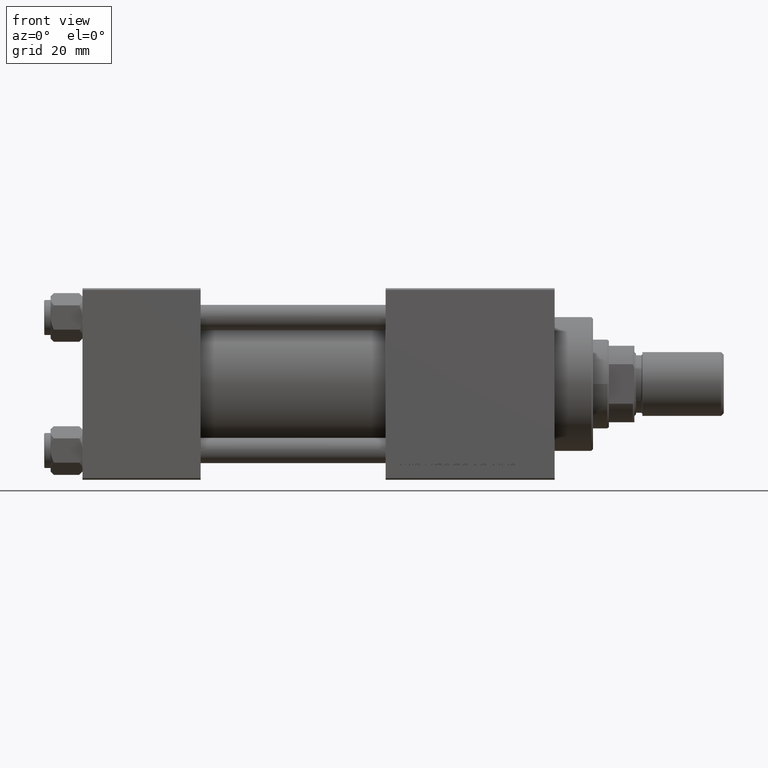
[diagram: clean part render]
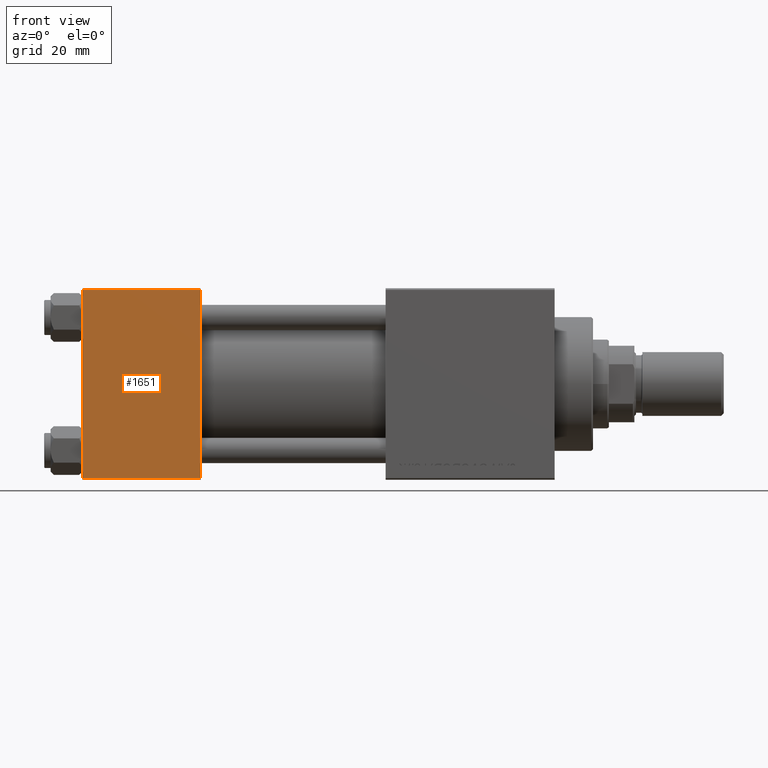
[diagram: same view with one face highlighted and labeled with its STEP entity id]
A machine part, front view. The second image highlights one B-rep face of the part: STEP entity #1651.
In plain terms, the highlighted planar face has unit normal (0, 1, 0).
Its self-contained STEP definition (entity closure, byte-faithful):
#905 = PLANE ( 'NONE',  #44231 ) ;
#1396 = ORIENTED_EDGE ( 'NONE', *, *, #7309, .T. ) ;
#1651 = ADVANCED_FACE ( 'NONE', ( #31537 ), #905, .F. ) ;
#3552 = EDGE_CURVE ( 'NONE', #26839, #11137, #45349, .T. ) ;
#3611 = CARTESIAN_POINT ( 'NONE',  ( 37.00000000000000000, -30.00000000000000000, 29.49999999999999289 ) ) ;
#4163 = LINE ( 'NONE', #23472, #27058 ) ;
#7309 = EDGE_CURVE ( 'NONE', #27346, #45643, #4163, .T. ) ;
#10072 = DIRECTION ( 'NONE',  ( -1.000000000000000000, 0.000000000000000000, 0.000000000000000000 ) ) ;
#10333 = CARTESIAN_POINT ( 'NONE',  ( 37.00000000000000000, -30.00000000000000000, 29.49999999999999289 ) ) ;
#11137 = VERTEX_POINT ( 'NONE', #32799 ) ;
#11878 = DIRECTION ( 'NONE',  ( 1.000000000000000000, 0.000000000000000000, 0.000000000000000000 ) ) ;
#11962 = DIRECTION ( 'NONE',  ( -0.000000000000000000, 1.000000000000000000, 0.000000000000000000 ) ) ;
#12549 = CARTESIAN_POINT ( 'NONE',  ( 37.00000000000000000, -30.00000000000000000, -29.50000000000001776 ) ) ;
#16093 = CARTESIAN_POINT ( 'NONE',  ( 37.00000000000000000, -30.00000000000000000, 29.99999999999999289 ) ) ;
#20454 = VECTOR ( 'NONE', #10072, 1000.000000000000000 ) ;
#23472 = CARTESIAN_POINT ( 'NONE',  ( 37.00000000000000000, -30.00000000000000000, -29.50000000000001776 ) ) ;
#24069 = DIRECTION ( 'NONE',  ( 0.000000000000000000, -0.000000000000000000, 1.000000000000000000 ) ) ;
#25788 = CARTESIAN_POINT ( 'NONE',  ( 0.000000000000000000, -30.00000000000000000, -29.50000000000001776 ) ) ;
#26839 = VERTEX_POINT ( 'NONE', #3611 ) ;
#27058 = VECTOR ( 'NONE', #11878, 1000.000000000000000 ) ;
#27346 = VERTEX_POINT ( 'NONE', #25788 ) ;
#30320 = ORIENTED_EDGE ( 'NONE', *, *, #45599, .F. ) ;
#30729 = EDGE_CURVE ( 'NONE', #11137, #27346, #32415, .T. ) ;
#31537 = FACE_OUTER_BOUND ( 'NONE', #45804, .T. ) ;
#31927 = ORIENTED_EDGE ( 'NONE', *, *, #3552, .T. ) ;
#32090 = VECTOR ( 'NONE', #48118, 1000.000000000000000 ) ;
#32415 = LINE ( 'NONE', #40625, #32090 ) ;
#32799 = CARTESIAN_POINT ( 'NONE',  ( 0.000000000000000000, -30.00000000000000000, 29.49999999999999289 ) ) ;
#34935 = VECTOR ( 'NONE', #43962, 1000.000000000000000 ) ;
#39405 = ORIENTED_EDGE ( 'NONE', *, *, #30729, .T. ) ;
#40625 = CARTESIAN_POINT ( 'NONE',  ( 0.000000000000000000, -30.00000000000000000, 29.99999999999999289 ) ) ;
#43433 = CARTESIAN_POINT ( 'NONE',  ( 37.00000000000000000, -30.00000000000000000, 29.99999999999999289 ) ) ;
#43962 = DIRECTION ( 'NONE',  ( 0.000000000000000000, 0.000000000000000000, -1.000000000000000000 ) ) ;
#44231 = AXIS2_PLACEMENT_3D ( 'NONE', #16093, #11962, #24069 ) ;
#45349 = LINE ( 'NONE', #10333, #20454 ) ;
#45599 = EDGE_CURVE ( 'NONE', #26839, #45643, #48093, .T. ) ;
#45643 = VERTEX_POINT ( 'NONE', #12549 ) ;
#45804 = EDGE_LOOP ( 'NONE', ( #39405, #1396, #30320, #31927 ) ) ;
#48093 = LINE ( 'NONE', #43433, #34935 ) ;
#48118 = DIRECTION ( 'NONE',  ( 0.000000000000000000, 0.000000000000000000, -1.000000000000000000 ) ) ;